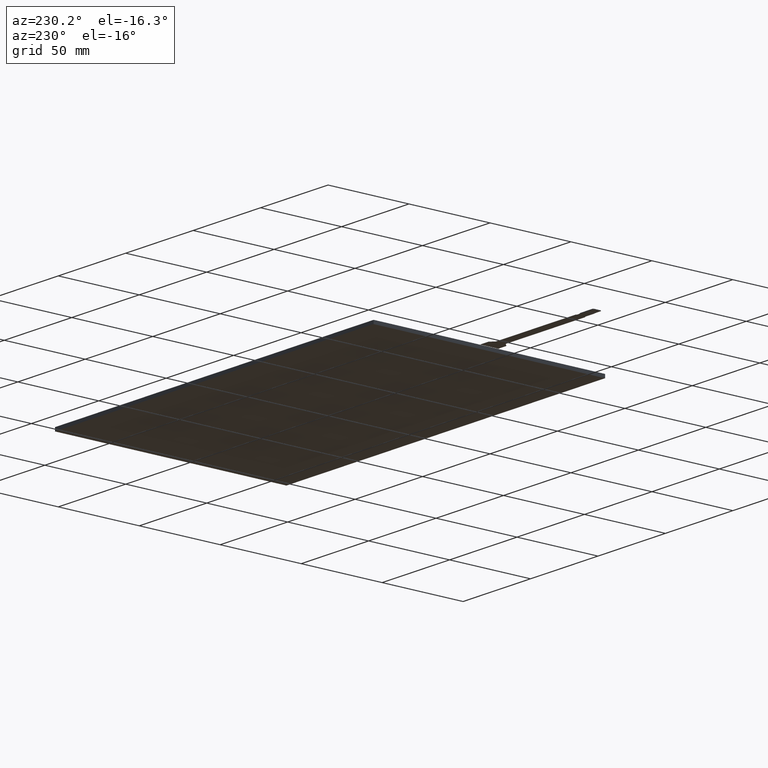
[diagram: clean part render]
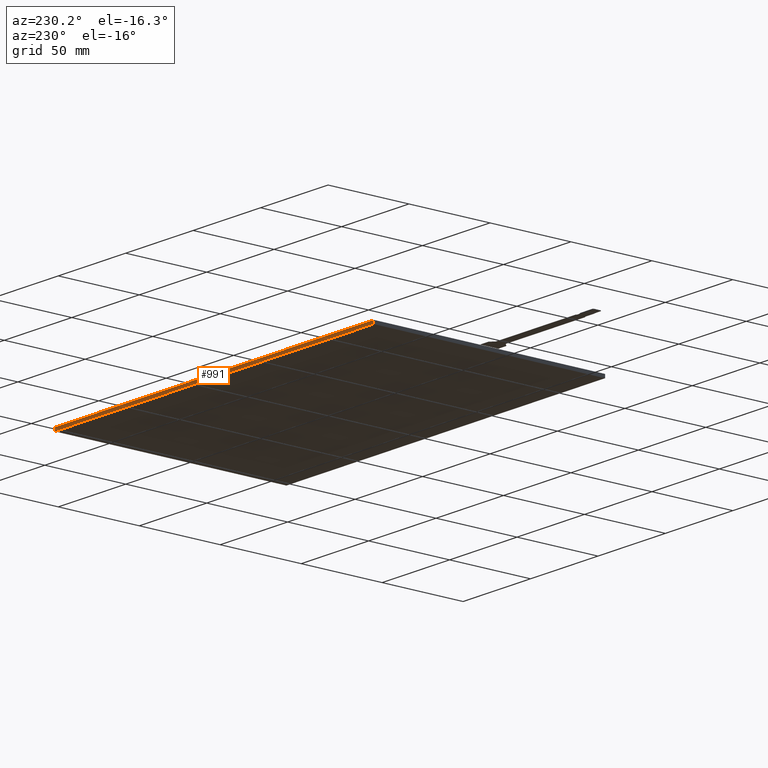
[diagram: same view with one face highlighted and labeled with its STEP entity id]
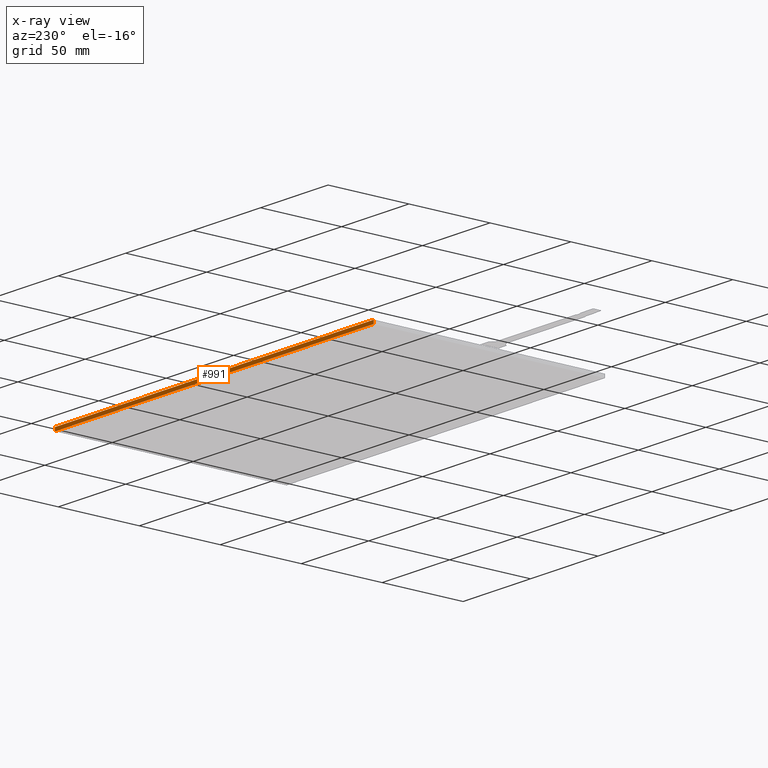
[diagram: x-ray of the same camera — body ghosted, the highlighted face saturated]
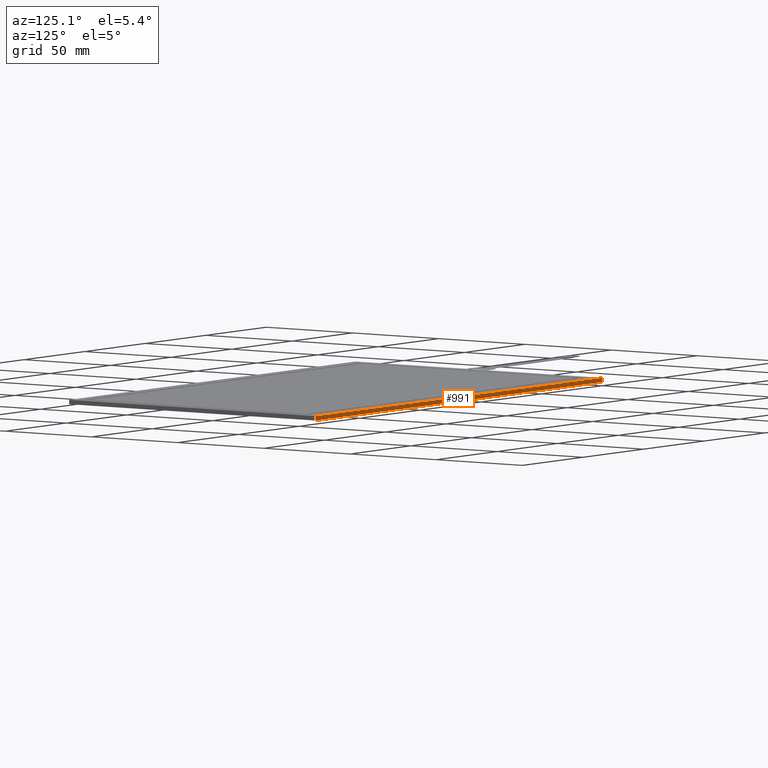
[diagram: same view with one face highlighted and labeled with its STEP entity id]
A machine part, auxiliary view. The second image highlights one B-rep face of the part: STEP entity #991.
The next image is the same camera in x-ray: the body ghosted, the highlighted face saturated — about 0% of this face is hidden behind the body in this view.
A second angle (auxiliary view) of the same face is appended — the face is thin or edge-on in the first view.
In plain terms, the highlighted planar face has unit normal (0, 1, 0).
Its self-contained STEP definition (entity closure, byte-faithful):
#81=FACE_OUTER_BOUND('',#135,.T.);
#135=EDGE_LOOP('',(#716,#717,#718,#719));
#198=LINE('',#1427,#324);
#202=LINE('',#1435,#328);
#208=LINE('',#1446,#334);
#209=LINE('',#1448,#335);
#324=VECTOR('',#1164,10.);
#328=VECTOR('',#1170,10.);
#334=VECTOR('',#1180,10.);
#335=VECTOR('',#1183,10.);
#442=VERTEX_POINT('',#1425);
#443=VERTEX_POINT('',#1426);
#446=VERTEX_POINT('',#1434);
#449=VERTEX_POINT('',#1444);
#542=EDGE_CURVE('',#442,#443,#198,.T.);
#546=EDGE_CURVE('',#443,#446,#202,.T.);
#552=EDGE_CURVE('',#442,#449,#208,.T.);
#553=EDGE_CURVE('',#446,#449,#209,.T.);
#716=ORIENTED_EDGE('',*,*,#542,.F.);
#717=ORIENTED_EDGE('',*,*,#552,.T.);
#718=ORIENTED_EDGE('',*,*,#553,.F.);
#719=ORIENTED_EDGE('',*,*,#546,.F.);
#945=PLANE('',#1067);
#991=ADVANCED_FACE('',(#81),#945,.T.);
#1067=AXIS2_PLACEMENT_3D('',#1447,#1181,#1182);
#1164=DIRECTION('',(-1.,0.,0.));
#1170=DIRECTION('',(0.,0.,-1.));
#1180=DIRECTION('',(0.,0.,-1.));
#1181=DIRECTION('center_axis',(0.,1.,0.));
#1182=DIRECTION('ref_axis',(1.,0.,0.));
#1183=DIRECTION('',(1.,0.,0.));
#1425=CARTESIAN_POINT('',(116.71,71.5,0.));
#1426=CARTESIAN_POINT('',(-119.56,71.5,0.));
#1427=CARTESIAN_POINT('',(116.71,71.5,0.));
#1434=CARTESIAN_POINT('',(-119.56,71.5,-2.1));
#1435=CARTESIAN_POINT('',(-119.56,71.5,0.));
#1444=CARTESIAN_POINT('',(116.71,71.5,-2.1));
#1446=CARTESIAN_POINT('',(116.71,71.5,0.));
#1447=CARTESIAN_POINT('Origin',(-119.56,71.5,0.));
#1448=CARTESIAN_POINT('',(116.71,71.5,-2.1));